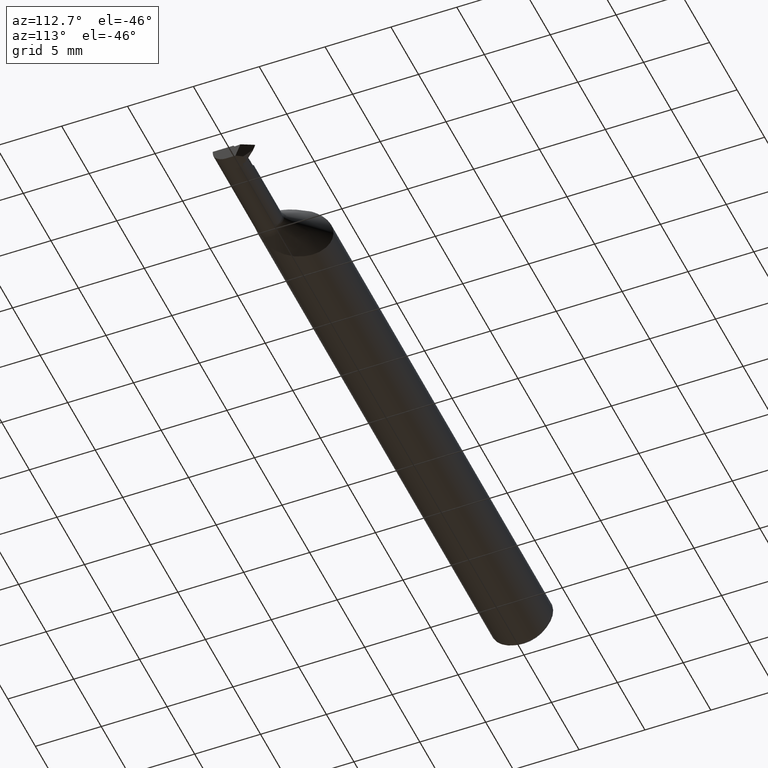
[diagram: clean part render]
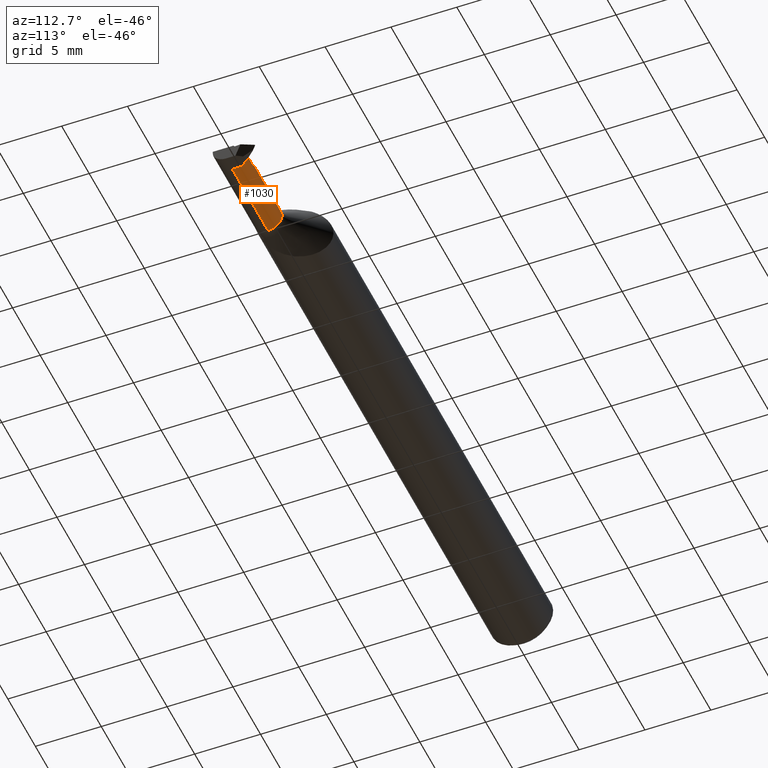
[diagram: same view with one face highlighted and labeled with its STEP entity id]
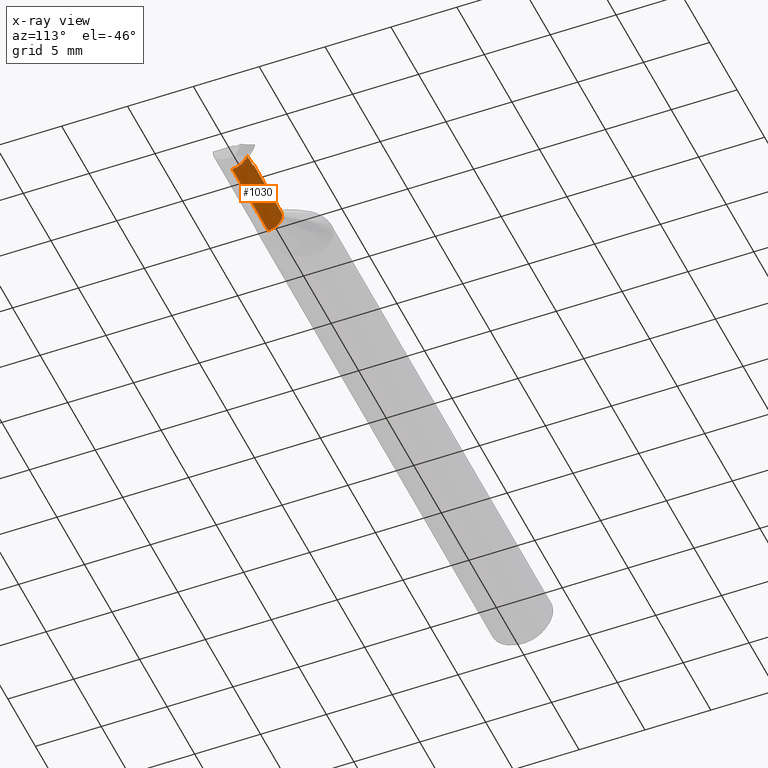
[diagram: x-ray of the same camera — body ghosted, the highlighted face saturated]
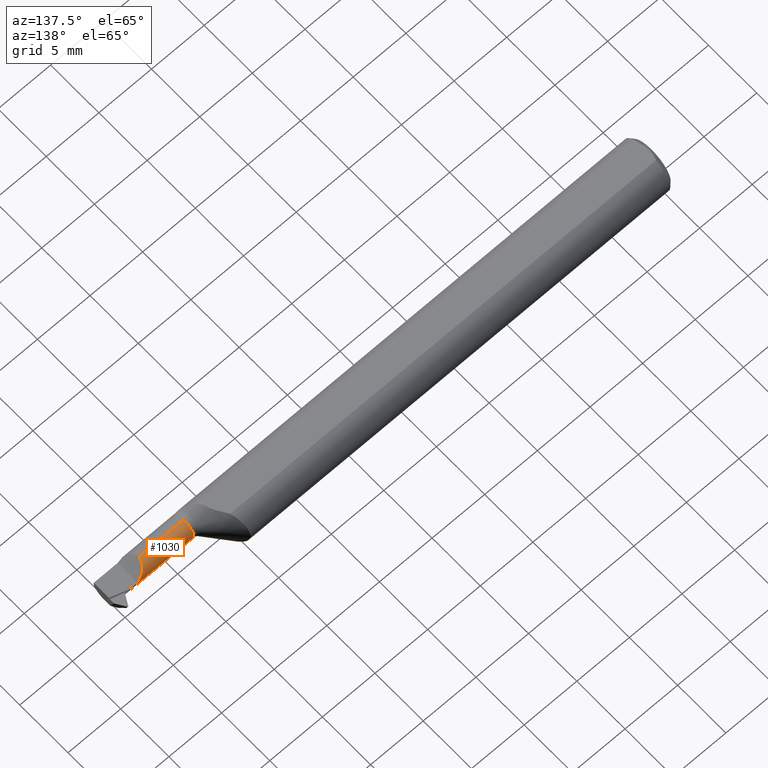
[diagram: same view with one face highlighted and labeled with its STEP entity id]
A machine part, auxiliary view. The second image highlights one B-rep face of the part: STEP entity #1030.
The next image is the same camera in x-ray: the body ghosted, the highlighted face saturated — about 0% of this face is hidden behind the body in this view.
A second angle (auxiliary view) of the same face is appended — the face is thin or edge-on in the first view.
In plain terms, the highlighted cylindrical surface (edge-blend (fillet) strip) has radius 1.0668 mm, axis along (-1, -0, -0).
Its self-contained STEP definition (entity closure, byte-faithful):
#6 = EDGE_CURVE ( 'NONE', #299, #706, #41, .T. ) ;
#22 = ORIENTED_EDGE ( 'NONE', *, *, #705, .T. ) ;
#32 = ORIENTED_EDGE ( 'NONE', *, *, #6, .T. ) ;
#41 = B_SPLINE_CURVE_WITH_KNOTS ( 'NONE', 3,
 ( #373, #438, #857, #524 ),
 .UNSPECIFIED., .F., .F.,
 ( 4, 4 ),
 ( 0.005559009411023834064, 0.005812203773550317712 ),
 .UNSPECIFIED. ) ;
#89 = DIRECTION ( 'NONE',  ( -1.000000000000000000, -0.000000000000000000, -0.000000000000000000 ) ) ;
#110 = CARTESIAN_POINT ( 'NONE',  ( 1.946169084099220736, -0.01171903000068034821, -0.003159802512198645226 ) ) ;
#114 = ORIENTED_EDGE ( 'NONE', *, *, #422, .T. ) ;
#126 = LINE ( 'NONE', #543, #675 ) ;
#138 =( BOUNDED_CURVE ( )  B_SPLINE_CURVE ( 3, ( #887, #227, #880, #557 ),
 .UNSPECIFIED., .F., .F. ) 
 B_SPLINE_CURVE_WITH_KNOTS ( ( 4, 4 ),
 ( 1.186823891356143301, 1.495491781307813239 ),
 .UNSPECIFIED. ) 
 CURVE ( )  GEOMETRIC_REPRESENTATION_ITEM ( )  RATIONAL_B_SPLINE_CURVE ( ( 1.000000000000000000, 0.9920760915013195902, 0.9920760915013195902, 1.000000000000000000 ) ) 
 REPRESENTATION_ITEM ( '' )  );
#152 = DIRECTION ( 'NONE',  ( 0.000000000000000000, 0.000000000000000000, 1.000000000000000000 ) ) ;
#154 = CARTESIAN_POINT ( 'NONE',  ( 1.689999999999999947, -0.05360000000000000875, 0.000000000000000000 ) ) ;
#158 = CARTESIAN_POINT ( 'NONE',  ( 1.700355339059327342, -0.05360000000000000875, 0.000000000000000000 ) ) ;
#168 = LINE ( 'NONE', #414, #215 ) ;
#171 = VERTEX_POINT ( 'NONE', #297 ) ;
#174 = VERTEX_POINT ( 'NONE', #481 ) ;
#180 = EDGE_CURVE ( 'NONE', #962, #983, #459, .T. ) ;
#184 = LINE ( 'NONE', #816, #247 ) ;
#215 = VECTOR ( 'NONE', #89, 39.37007874015748143 ) ;
#222 =( BOUNDED_CURVE ( )  B_SPLINE_CURVE ( 3, ( #655, #246, #577, #894 ),
 .UNSPECIFIED., .F., .F. ) 
 B_SPLINE_CURVE_WITH_KNOTS ( ( 4, 4 ),
 ( 0.000000000000000000, 1.561272373292276194 ),
 .UNSPECIFIED. ) 
 CURVE ( )  GEOMETRIC_REPRESENTATION_ITEM ( )  RATIONAL_B_SPLINE_CURVE ( ( 1.000000000000000000, 0.8069773181348132152, 0.8069773181348132152, 1.000000000000000000 ) ) 
 REPRESENTATION_ITEM ( '' )  );
#227 = CARTESIAN_POINT ( 'NONE',  ( 1.950723650655220576, -0.01303301200713708613, -0.01171080216343687620 ) ) ;
#229 = CIRCLE ( 'NONE', #971, 0.04200000000000000955 ) ;
#236 = CARTESIAN_POINT ( 'NONE',  ( 1.952385796610864643, -0.01171903000068047658, -0.003159802512198590582 ) ) ;
#244 = CARTESIAN_POINT ( 'NONE',  ( 1.910000000000000142, -0.05360000000000000875, 0.000000000000000000 ) ) ;
#246 = CARTESIAN_POINT ( 'NONE',  ( 1.868399999999999617, -0.02918235780292394166, 0.04200000000000001649 ) ) ;
#247 = VECTOR ( 'NONE', #835, 39.37007874015748143 ) ;
#254 = EDGE_CURVE ( 'NONE', #574, #927, #222, .T. ) ;
#256 = CARTESIAN_POINT ( 'NONE',  ( 1.955000000000000071, -0.05360000000000001569, -0.04200000000000000955 ) ) ;
#278 = CARTESIAN_POINT ( 'NONE',  ( 1.936732327715487090, -0.01160000000000000440, 5.494884123412439327E-17 ) ) ;
#297 = CARTESIAN_POINT ( 'NONE',  ( 1.955000000000000071, -0.01465827810819495328, -0.01573347692346836399 ) ) ;
#299 = VERTEX_POINT ( 'NONE', #278 ) ;
#309 = CARTESIAN_POINT ( 'NONE',  ( 1.700355339059327342, -0.05360000000000000875, 0.04200000000000000955 ) ) ;
#321 = DIRECTION ( 'NONE',  ( 0.000000000000000000, 0.000000000000000000, 1.000000000000000000 ) ) ;
#329 = ORIENTED_EDGE ( 'NONE', *, *, #928, .T. ) ;
#334 = CIRCLE ( 'NONE', #926, 0.04200000000000000955 ) ;
#373 = CARTESIAN_POINT ( 'NONE',  ( 1.936732327715487090, -0.01160000000000000440, 5.494884123412439327E-17 ) ) ;
#407 = EDGE_LOOP ( 'NONE', ( #848, #735, #581, #611, #945, #329, #22, #32, #114, #446, #895 ) ) ;
#414 = CARTESIAN_POINT ( 'NONE',  ( 1.689999999999999947, -0.05360000000000000875, 0.04200000000000000955 ) ) ;
#422 = EDGE_CURVE ( 'NONE', #706, #640, #623, .T. ) ;
#435 = VERTEX_POINT ( 'NONE', #766 ) ;
#438 = CARTESIAN_POINT ( 'NONE',  ( 1.939863775260398437, -0.01159999999999999747, -0.001102903511658820694 ) ) ;
#446 = ORIENTED_EDGE ( 'NONE', *, *, #601, .F. ) ;
#457 = DIRECTION ( 'NONE',  ( -1.000000000000000000, -0.000000000000000000, -0.000000000000000000 ) ) ;
#459 = CIRCLE ( 'NONE', #858, 0.04200000000000000955 ) ;
#464 = DIRECTION ( 'NONE',  ( 0.000000000000000000, 0.000000000000000000, 1.000000000000000000 ) ) ;
#481 = CARTESIAN_POINT ( 'NONE',  ( 1.949941721891805146, -0.01465827810819494807, -0.01573347692346832929 ) ) ;
#486 = DIRECTION ( 'NONE',  ( 1.000000000000000000, 0.000000000000000000, 0.000000000000000000 ) ) ;
#489 = DIRECTION ( 'NONE',  ( 0.000000000000000000, 0.000000000000000000, 1.000000000000000000 ) ) ;
#495 = CARTESIAN_POINT ( 'NONE',  ( 1.700355339059327342, -0.05360000000000000181, -0.04200000000000000955 ) ) ;
#511 = VECTOR ( 'NONE', #940, 39.37007874015748143 ) ;
#524 = CARTESIAN_POINT ( 'NONE',  ( 1.946169084099220736, -0.01171903000068034821, -0.003159802512198645226 ) ) ;
#538 = CARTESIAN_POINT ( 'NONE',  ( 1.955000000000000071, -0.05360000000000000875, 0.000000000000000000 ) ) ;
#543 = CARTESIAN_POINT ( 'NONE',  ( 1.689999999999999947, -0.01465827810819498450, -0.01573347692346844032 ) ) ;
#555 = AXIS2_PLACEMENT_3D ( 'NONE', #154, #1039, #321 ) ;
#557 = CARTESIAN_POINT ( 'NONE',  ( 1.952385796610864643, -0.01171903000068047658, -0.003159802512198590582 ) ) ;
#574 = VERTEX_POINT ( 'NONE', #658 ) ;
#577 = CARTESIAN_POINT ( 'NONE',  ( 1.885583465204099030, -0.01183445377840412066, 0.02481653479590106501 ) ) ;
#581 = ORIENTED_EDGE ( 'NONE', *, *, #180, .T. ) ;
#590 = CARTESIAN_POINT ( 'NONE',  ( 1.689999999999999947, -0.05360000000000000181, -0.04200000000000000955 ) ) ;
#601 = EDGE_CURVE ( 'NONE', #174, #640, #138, .T. ) ;
#611 = ORIENTED_EDGE ( 'NONE', *, *, #677, .F. ) ;
#618 = CARTESIAN_POINT ( 'NONE',  ( 1.689999999999999947, -0.01171903000068046791, -0.003159802512198588847 ) ) ;
#623 = LINE ( 'NONE', #618, #511 ) ;
#640 = VERTEX_POINT ( 'NONE', #236 ) ;
#655 = CARTESIAN_POINT ( 'NONE',  ( 1.868399999999999617, -0.05360000000000000875, 0.04200000000000000955 ) ) ;
#658 = CARTESIAN_POINT ( 'NONE',  ( 1.868399999999999617, -0.05360000000000000875, 0.04200000000000000955 ) ) ;
#675 = VECTOR ( 'NONE', #774, 39.37007874015748143 ) ;
#677 = EDGE_CURVE ( 'NONE', #574, #983, #168, .T. ) ;
#705 = EDGE_CURVE ( 'NONE', #435, #299, #184, .T. ) ;
#706 = VERTEX_POINT ( 'NONE', #110 ) ;
#735 = ORIENTED_EDGE ( 'NONE', *, *, #813, .T. ) ;
#766 = CARTESIAN_POINT ( 'NONE',  ( 1.910000000000000142, -0.01160000000000001308, -6.429183357567478880E-17 ) ) ;
#768 = VERTEX_POINT ( 'NONE', #256 ) ;
#774 = DIRECTION ( 'NONE',  ( -1.000000000000000000, -0.000000000000000000, -0.000000000000000000 ) ) ;
#794 = FACE_OUTER_BOUND ( 'NONE', #407, .T. ) ;
#813 = EDGE_CURVE ( 'NONE', #768, #962, #984, .T. ) ;
#816 = CARTESIAN_POINT ( 'NONE',  ( 1.689999999999999947, -0.01160000000000000440, -6.429183357567480113E-17 ) ) ;
#833 = EDGE_CURVE ( 'NONE', #171, #174, #126, .T. ) ;
#835 = DIRECTION ( 'NONE',  ( 1.000000000000000000, 0.000000000000000000, 0.000000000000000000 ) ) ;
#848 = ORIENTED_EDGE ( 'NONE', *, *, #892, .T. ) ;
#857 = CARTESIAN_POINT ( 'NONE',  ( 1.943010087755334458, -0.01164310651876819189, -0.002153489916415855712 ) ) ;
#858 = AXIS2_PLACEMENT_3D ( 'NONE', #158, #486, #152 ) ;
#878 = CYLINDRICAL_SURFACE ( 'NONE', #555, 0.04200000000000000955 ) ;
#880 = CARTESIAN_POINT ( 'NONE',  ( 1.951544849331409592, -0.01204543718544288239, -0.007486101215938024619 ) ) ;
#887 = CARTESIAN_POINT ( 'NONE',  ( 1.949941721891805146, -0.01465827810819494807, -0.01573347692346832929 ) ) ;
#890 = DIRECTION ( 'NONE',  ( -1.000000000000000000, -0.000000000000000000, -0.000000000000000000 ) ) ;
#892 = EDGE_CURVE ( 'NONE', #171, #768, #334, .T. ) ;
#894 = CARTESIAN_POINT ( 'NONE',  ( 1.910000000000000142, -0.01160190480509861767, 0.0004000000000000086386 ) ) ;
#895 = ORIENTED_EDGE ( 'NONE', *, *, #833, .F. ) ;
#908 = DIRECTION ( 'NONE',  ( -1.000000000000000000, -0.000000000000000000, -0.000000000000000000 ) ) ;
#926 = AXIS2_PLACEMENT_3D ( 'NONE', #538, #457, #464 ) ;
#927 = VERTEX_POINT ( 'NONE', #963 ) ;
#928 = EDGE_CURVE ( 'NONE', #927, #435, #229, .T. ) ;
#940 = DIRECTION ( 'NONE',  ( 1.000000000000000000, 0.000000000000000000, 0.000000000000000000 ) ) ;
#945 = ORIENTED_EDGE ( 'NONE', *, *, #254, .T. ) ;
#962 = VERTEX_POINT ( 'NONE', #495 ) ;
#963 = CARTESIAN_POINT ( 'NONE',  ( 1.910000000000000142, -0.01160190480509861767, 0.0004000000000000086386 ) ) ;
#971 = AXIS2_PLACEMENT_3D ( 'NONE', #244, #890, #489 ) ;
#983 = VERTEX_POINT ( 'NONE', #309 ) ;
#984 = LINE ( 'NONE', #590, #990 ) ;
#990 = VECTOR ( 'NONE', #908, 39.37007874015748143 ) ;
#1030 = ADVANCED_FACE ( 'NONE', ( #794 ), #878, .T. ) ;
#1039 = DIRECTION ( 'NONE',  ( -1.000000000000000000, -0.000000000000000000, -0.000000000000000000 ) ) ;